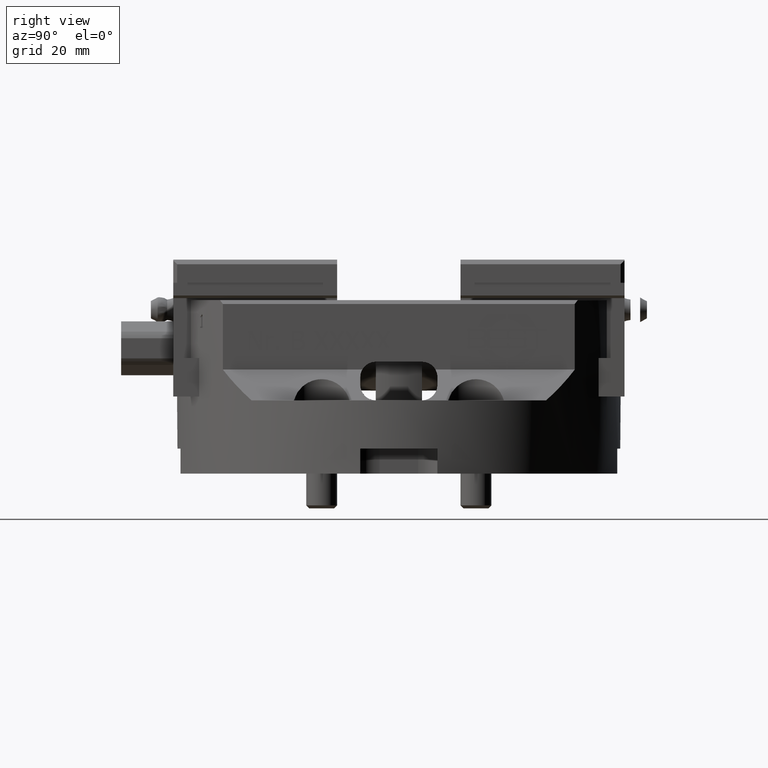
[diagram: clean part render]
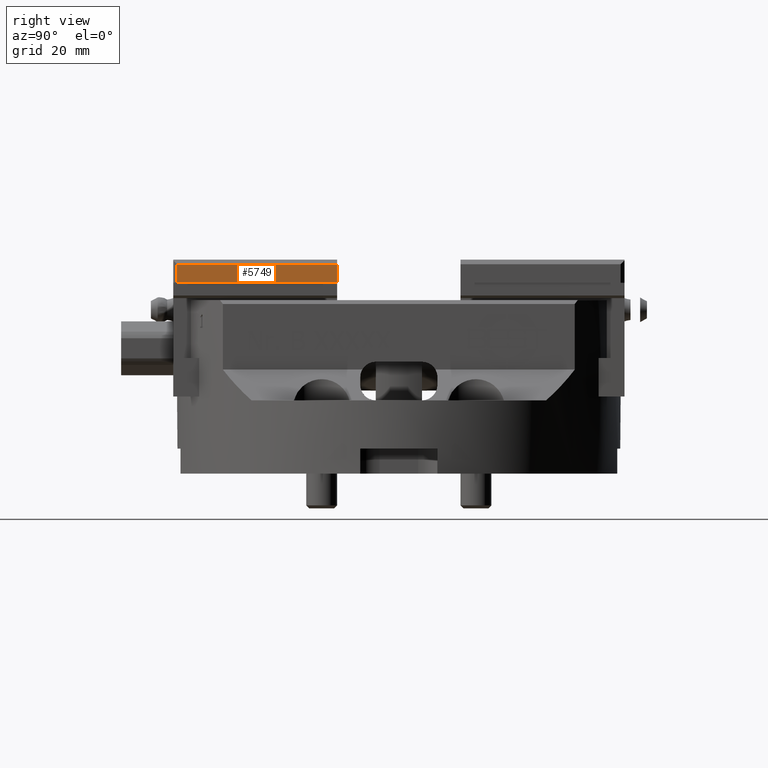
[diagram: same view with one face highlighted and labeled with its STEP entity id]
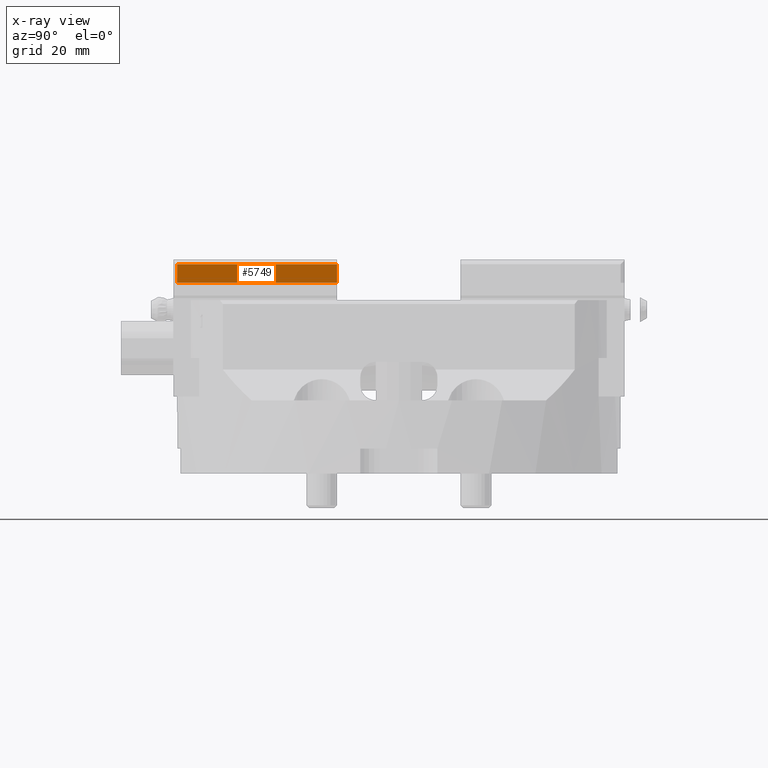
[diagram: x-ray of the same camera — body ghosted, the highlighted face saturated]
A machine part, right view. The second image highlights one B-rep face of the part: STEP entity #5749.
The next image is the same camera in x-ray: the body ghosted, the highlighted face saturated — about 0% of this face is hidden behind the body in this view.
In plain terms, the highlighted planar face has unit normal (1, 0, 0).
Its self-contained STEP definition (entity closure, byte-faithful):
#5250=CARTESIAN_POINT('',(35.000000000000057,-57.5,54.302632570231353));
#5251=VERTEX_POINT('',#5250);
#5268=CARTESIAN_POINT('',(35.000000000000057,-57.5,49.499999999999993));
#5269=VERTEX_POINT('',#5268);
#5276=CARTESIAN_POINT('',(35.000000000000057,-57.5,49.499999999999993));
#5277=DIRECTION('',(0.0,0.0,1.0));
#5278=VECTOR('',#5277,4.802632570231353);
#5279=LINE('',#5276,#5278);
#5280=EDGE_CURVE('',#5269,#5251,#5279,.T.);
#5589=CARTESIAN_POINT('',(35.000000000000057,-15.999999999999996,54.302632570231353));
#5590=VERTEX_POINT('',#5589);
#5591=CARTESIAN_POINT('',(35.000000000000057,-16.0,54.302632570231353));
#5592=DIRECTION('',(0.0,-1.0,0.0));
#5593=VECTOR('',#5592,41.5);
#5594=LINE('',#5591,#5593);
#5595=EDGE_CURVE('',#5590,#5251,#5594,.T.);
#5726=CARTESIAN_POINT('',(35.000000000000057,-58.5,49.499999999999993));
#5727=DIRECTION('',(1.0,0.0,0.0));
#5728=DIRECTION('',(0.0,0.0,-1.0));
#5729=AXIS2_PLACEMENT_3D('',#5726,#5727,#5728);
#5730=PLANE('',#5729);
#5731=ORIENTED_EDGE('',*,*,#5280,.F.);
#5732=CARTESIAN_POINT('',(35.000000000000057,-15.999999999999996,49.499999999999993));
#5733=VERTEX_POINT('',#5732);
#5734=CARTESIAN_POINT('',(35.000000000000057,-57.5,49.499999999999993));
#5735=DIRECTION('',(0.0,1.0,0.0));
#5736=VECTOR('',#5735,41.5);
#5737=LINE('',#5734,#5736);
#5738=EDGE_CURVE('',#5269,#5733,#5737,.T.);
#5739=ORIENTED_EDGE('',*,*,#5738,.T.);
#5740=CARTESIAN_POINT('',(35.000000000000057,-15.999999999999996,49.499999999999993));
#5741=DIRECTION('',(0.0,0.0,1.0));
#5742=VECTOR('',#5741,4.802632570231353);
#5743=LINE('',#5740,#5742);
#5744=EDGE_CURVE('',#5733,#5590,#5743,.T.);
#5745=ORIENTED_EDGE('',*,*,#5744,.T.);
#5746=ORIENTED_EDGE('',*,*,#5595,.T.);
#5747=EDGE_LOOP('',(#5731,#5739,#5745,#5746));
#5748=FACE_OUTER_BOUND('',#5747,.T.);
#5749=ADVANCED_FACE('',(#5748),#5730,.T.);